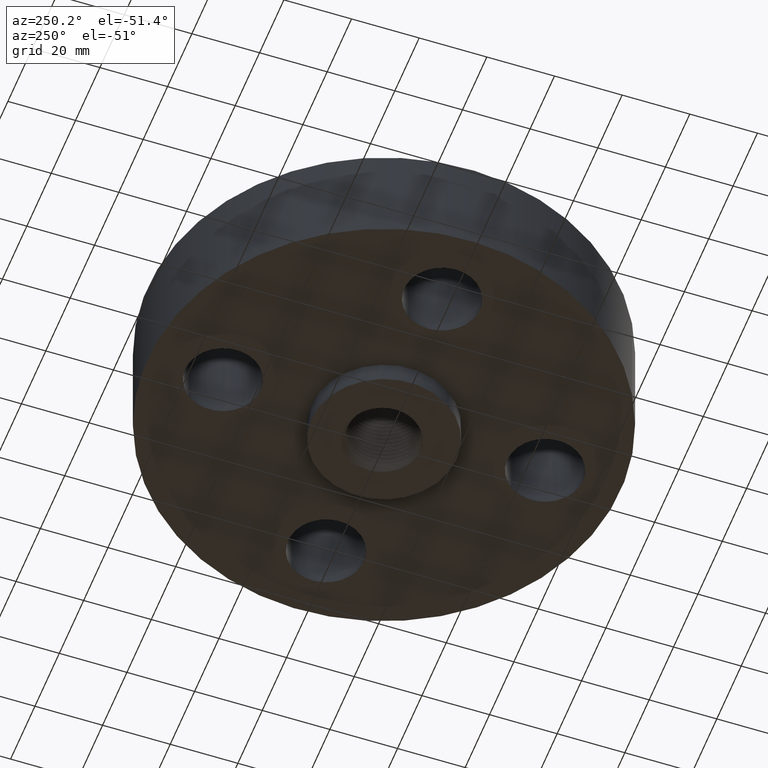
[diagram: clean part render]
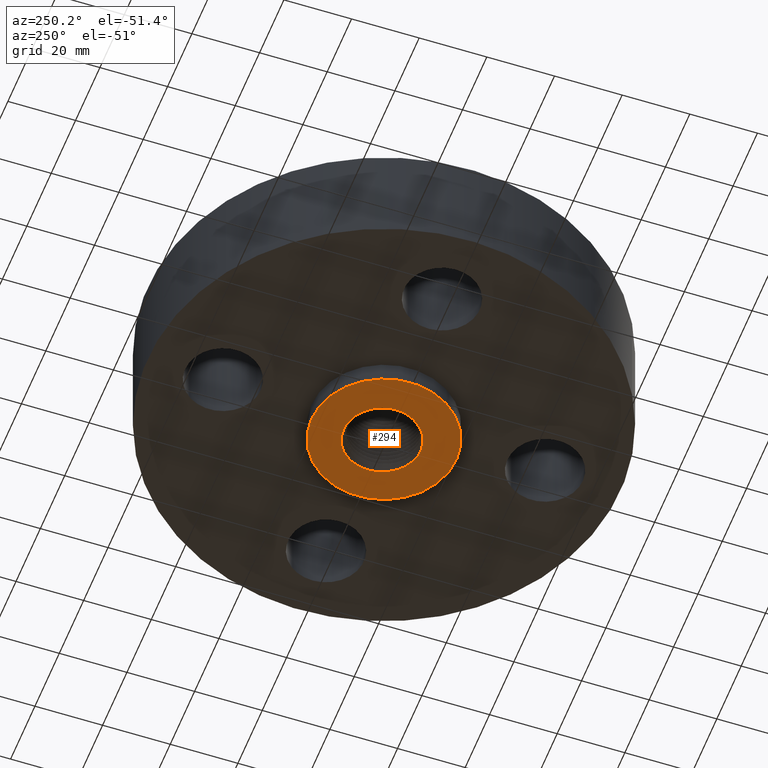
[diagram: same view with one face highlighted and labeled with its STEP entity id]
A machine part, auxiliary view. The second image highlights one B-rep face of the part: STEP entity #294.
In plain terms, the highlighted planar face has unit normal (0, 0, -1).
Its self-contained STEP definition (entity closure, byte-faithful):
#168=AXIS2_PLACEMENT_3D('Plane Axis2P3D',#165,#166,#167) ;
#172=AXIS2_PLACEMENT_3D('Circle Axis2P3D',#170,#171,$) ;
#181=AXIS2_PLACEMENT_3D('Circle Axis2P3D',#179,#180,$) ;
#282=AXIS2_PLACEMENT_3D('Circle Axis2P3D',#280,#281,$) ;
#165=CARTESIAN_POINT('Axis2P3D Location',(0.,0.,-0.250000000001)) ;
#170=CARTESIAN_POINT('Axis2P3D Location',(0.,0.,-0.250000000001)) ;
#174=CARTESIAN_POINT('Vertex',(0.405114580122,0.7415572648,-0.250000000001)) ;
#176=CARTESIAN_POINT('Vertex',(-0.405114580122,-0.7415572648,-0.250000000001)) ;
#179=CARTESIAN_POINT('Axis2P3D Location',(0.,0.,-0.250000000001)) ;
#189=CARTESIAN_POINT('Control Point',(-6.53711867609E-005,-0.434220736851,-0.250000000001)) ;
#190=CARTESIAN_POINT('Control Point',(-0.045888895126,-0.432388937458,-0.250000000001)) ;
#191=CARTESIAN_POINT('Control Point',(-0.0913489475798,-0.424507658599,-0.250000000001)) ;
#192=CARTESIAN_POINT('Control Point',(-0.135366753099,-0.410640990649,-0.250000000001)) ;
#193=CARTESIAN_POINT('Control Point',(-0.197742313463,-0.381366370656,-0.250000000001)) ;
#194=CARTESIAN_POINT('Control Point',(-0.252490503629,-0.340766001612,-0.250000000001)) ;
#195=CARTESIAN_POINT('Control Point',(-0.269828717847,-0.326003028399,-0.250000000001)) ;
#196=CARTESIAN_POINT('Control Point',(-0.286099234949,-0.310141856312,-0.250000000001)) ;
#197=CARTESIAN_POINT('Control Point',(-0.301213110676,-0.293285926354,-0.250000000001)) ;
#198=CARTESIAN_POINT('Vertex',(-6.53711867609E-005,-0.434220736851,-0.250000000001)) ;
#200=CARTESIAN_POINT('Vertex',(-0.301213289618,-0.293286212737,-0.250000054857)) ;
#204=CARTESIAN_POINT('Control Point',(0.212276347253,-0.388677834281,-0.250000000001)) ;
#205=CARTESIAN_POINT('Control Point',(0.172775053043,-0.408290804184,-0.250000000001)) ;
#206=CARTESIAN_POINT('Control Point',(0.130924728626,-0.422936109546,-0.250000000001)) ;
#207=CARTESIAN_POINT('Control Point',(0.0875344417337,-0.432223950328,-0.250000000001)) ;
#208=CARTESIAN_POINT('Control Point',(0.0435697838011,-0.435965055786,-0.250000000001)) ;
#209=CARTESIAN_POINT('Control Point',(-6.5371186761E-005,-0.434220736851,-0.250000000001)) ;
#210=CARTESIAN_POINT('Vertex',(0.212276347253,-0.388677834281,-0.250000000001)) ;
#214=CARTESIAN_POINT('Control Point',(0.313129577588,0.358690075799,-0.250000000001)) ;
#215=CARTESIAN_POINT('Control Point',(0.345769248585,0.328039286793,-0.250000000001)) ;
#216=CARTESIAN_POINT('Control Point',(0.374740638981,0.293608636533,-0.250000000001)) ;
#217=CARTESIAN_POINT('Control Point',(0.399452248007,0.255966052701,-0.250000000001)) ;
#218=CARTESIAN_POINT('Control Point',(0.431421410495,0.191765119803,-0.250000000001)) ;
#219=CARTESIAN_POINT('Control Point',(0.450602397653,0.123214638373,-0.250000000001)) ;
#220=CARTESIAN_POINT('Control Point',(0.455935872845,0.0970803492297,-0.250000000001)) ;
#221=CARTESIAN_POINT('Control Point',(0.465116092068,0.0267102460873,-0.250000000001)) ;
#222=CARTESIAN_POINT('Control Point',(0.460805330466,-0.044192226786,-0.250000000001)) ;
#223=CARTESIAN_POINT('Control Point',(0.452807680931,-0.0878707983053,-0.250000000001)) ;
#224=CARTESIAN_POINT('Control Point',(0.4265560584,-0.172255667361,-0.250000000001)) ;
#225=CARTESIAN_POINT('Control Point',(0.381223725128,-0.247666205016,-0.250000000001)) ;
#226=CARTESIAN_POINT('Control Point',(0.354144657071,-0.282365103189,-0.250000000001)) ;
#227=CARTESIAN_POINT('Control Point',(0.310197888563,-0.326399054135,-0.250000000001)) ;
#228=CARTESIAN_POINT('Control Point',(0.259825935983,-0.361946602428,-0.250000000001)) ;
#229=CARTESIAN_POINT('Control Point',(0.244413287284,-0.371681056901,-0.250000000001)) ;
#230=CARTESIAN_POINT('Control Point',(0.228543952238,-0.380600730719,-0.250000000001)) ;
#231=CARTESIAN_POINT('Control Point',(0.212276347253,-0.388677834281,-0.250000000001)) ;
#232=CARTESIAN_POINT('Vertex',(0.313129577588,0.358690075799,-0.250000000001)) ;
#236=CARTESIAN_POINT('Control Point',(0.313129577646,0.358690075799,-0.250000000001)) ;
#237=CARTESIAN_POINT('Control Point',(0.283728001747,0.382347080325,-0.250000000001)) ;
#238=CARTESIAN_POINT('Control Point',(0.252037725258,0.403043295537,-0.250000000001)) ;
#239=CARTESIAN_POINT('Control Point',(0.218447055836,0.420477347549,-0.250000000001)) ;
#240=CARTESIAN_POINT('Control Point',(0.155426546005,0.445557717871,-0.250000000001)) ;
#241=CARTESIAN_POINT('Control Point',(0.089281717292,0.458927099169,-0.250000000001)) ;
#242=CARTESIAN_POINT('Control Point',(0.0595403769343,0.462488019325,-0.250000000001)) ;
#243=CARTESIAN_POINT('Control Point',(0.0296871298369,0.463646000998,-0.250000000001)) ;
#244=CARTESIAN_POINT('Control Point',(-1.8509406782E-005,0.46241656434,-0.250000000001)) ;
#245=CARTESIAN_POINT('Vertex',(-1.8509406783E-005,0.46241656434,-0.250000000001)) ;
#249=CARTESIAN_POINT('Control Point',(-1.85094067829E-005,0.46241656434,-0.250000000001)) ;
#250=CARTESIAN_POINT('Control Point',(-0.0414849314258,0.460700380442,-0.250000000001)) ;
#251=CARTESIAN_POINT('Control Point',(-0.0826644001916,0.454332190189,-0.250000000001)) ;
#252=CARTESIAN_POINT('Control Point',(-0.122870214805,0.44334919881,-0.250000000001)) ;
#253=CARTESIAN_POINT('Control Point',(-0.165600774447,0.426279892152,-0.250000000001)) ;
#254=CARTESIAN_POINT('Control Point',(-0.205509618013,0.40421491769,-0.250000000001)) ;
#255=CARTESIAN_POINT('Control Point',(-0.20941613756,0.401991358824,-0.250000000001)) ;
#256=CARTESIAN_POINT('Control Point',(-0.21329263823,0.399720763072,-0.250000000001)) ;
#257=CARTESIAN_POINT('Control Point',(-0.217139360851,0.397403054396,-0.250000000001)) ;
#258=CARTESIAN_POINT('Vertex',(-0.217139360851,0.397403054396,-0.250000000001)) ;
#262=CARTESIAN_POINT('Control Point',(-0.217139360851,0.397403054396,-0.250000000001)) ;
#263=CARTESIAN_POINT('Control Point',(-0.254553124432,0.374860694973,-0.250000000001)) ;
#264=CARTESIAN_POINT('Control Point',(-0.289150638511,0.347861229504,-0.250000000001)) ;
#265=CARTESIAN_POINT('Control Point',(-0.320205805503,0.316863215083,-0.250000000001)) ;
#266=CARTESIAN_POINT('Control Point',(-0.37404249981,0.248120467831,-0.250000000001)) ;
#267=CARTESIAN_POINT('Control Point',(-0.409592643832,0.16889621612,-0.250000000001)) ;
#268=CARTESIAN_POINT('Control Point',(-0.422377534033,0.127384438212,-0.250000000001)) ;
#269=CARTESIAN_POINT('Control Point',(-0.43595457038,0.0508097195421,-0.250000000001)) ;
#270=CARTESIAN_POINT('Control Point',(-0.432459581075,-0.026302012566,-0.250000000001)) ;
#271=CARTESIAN_POINT('Control Point',(-0.42751871944,-0.0602422246644,-0.250000000001)) ;
#272=CARTESIAN_POINT('Control Point',(-0.412465380643,-0.120700156778,-0.250000000001)) ;
#273=CARTESIAN_POINT('Control Point',(-0.386940279313,-0.177127947377,-0.250000000001)) ;
#274=CARTESIAN_POINT('Control Point',(-0.373366167475,-0.201557710152,-0.250000000001)) ;
#275=CARTESIAN_POINT('Control Point',(-0.357878406456,-0.224710699644,-0.250000000001)) ;
#276=CARTESIAN_POINT('Control Point',(-0.340639432558,-0.246395898673,-0.250000000001)) ;
#277=CARTESIAN_POINT('Vertex',(-0.340639503985,-0.246395980549,-0.249999960402)) ;
#280=CARTESIAN_POINT('Axis2P3D Location',(-6.99353086378E-017,0.,-0.250000000001)) ;
#166=DIRECTION('Axis2P3D Direction',(0.,0.,-0.0393700787402)) ;
#167=DIRECTION('Axis2P3D XDirection',(0.0393700787402,0.,0.)) ;
#171=DIRECTION('Axis2P3D Direction',(0.,0.,-0.0393700787402)) ;
#180=DIRECTION('Axis2P3D Direction',(0.,0.,-0.0393700787402)) ;
#281=DIRECTION('Axis2P3D Direction',(0.,0.,-0.0393700787402)) ;
#185=ORIENTED_EDGE('',*,*,#178,.T.) ;
#186=ORIENTED_EDGE('',*,*,#183,.T.) ;
#286=ORIENTED_EDGE('',*,*,#202,.F.) ;
#287=ORIENTED_EDGE('',*,*,#212,.F.) ;
#288=ORIENTED_EDGE('',*,*,#234,.F.) ;
#289=ORIENTED_EDGE('',*,*,#247,.T.) ;
#290=ORIENTED_EDGE('',*,*,#260,.T.) ;
#291=ORIENTED_EDGE('',*,*,#279,.T.) ;
#292=ORIENTED_EDGE('',*,*,#284,.F.) ;
#293=FACE_BOUND('',#285,.T.) ;
#294=ADVANCED_FACE('PartBody',(#187,#293),#169,.T.) ;
#188=B_SPLINE_CURVE_WITH_KNOTS('',5,(#189,#190,#191,#192,#193,#194,#195,#196,#197),.UNSPECIFIED.,.F.,.U.,(6,3,6),(0.,8.36770129661,12.5700443344),.UNSPECIFIED.) ;
#203=B_SPLINE_CURVE_WITH_KNOTS('',5,(#204,#205,#206,#207,#208,#209),.UNSPECIFIED.,.F.,.U.,(6,6),(0.,7.96808956384),.UNSPECIFIED.) ;
#213=B_SPLINE_CURVE_WITH_KNOTS('',5,(#214,#215,#216,#217,#218,#219,#220,#221,#222,#223,#224,#225,#226,#227,#228,#229,#230,#231),.UNSPECIFIED.,.F.,.U.,(6,3,3,3,3,6),(0.,7.81917380367,12.507672472,20.3199067005,28.1312253768,31.4126807286),.UNSPECIFIED.) ;
#235=B_SPLINE_CURVE_WITH_KNOTS('',5,(#236,#237,#238,#239,#240,#241,#242,#243,#244),.UNSPECIFIED.,.F.,.U.,(6,3,6),(0.,6.59037298163,11.8539380468),.UNSPECIFIED.) ;
#248=B_SPLINE_CURVE_WITH_KNOTS('',5,(#249,#250,#251,#252,#253,#254,#255,#256,#257),.UNSPECIFIED.,.F.,.U.,(6,3,6),(0.,7.3474672108,8.15088159709),.UNSPECIFIED.) ;
#261=B_SPLINE_CURVE_WITH_KNOTS('',5,(#262,#263,#264,#265,#266,#267,#268,#269,#270,#271,#272,#273,#274,#275,#276),.UNSPECIFIED.,.F.,.U.,(6,3,3,3,6),(0.,7.81412095775,15.6348847987,21.8922214044,27.0468645302),.UNSPECIFIED.) ;
#173=CIRCLE('generated circle',#172,0.845000000003) ;
#182=CIRCLE('generated circle',#181,0.845000000003) ;
#283=CIRCLE('generated circle',#282,0.420412000144) ;
#178=EDGE_CURVE('',#175,#177,#173,.T.) ;
#183=EDGE_CURVE('',#177,#175,#182,.T.) ;
#202=EDGE_CURVE('',#199,#201,#188,.T.) ;
#212=EDGE_CURVE('',#211,#199,#203,.T.) ;
#234=EDGE_CURVE('',#233,#211,#213,.T.) ;
#247=EDGE_CURVE('',#233,#246,#235,.T.) ;
#260=EDGE_CURVE('',#246,#259,#248,.T.) ;
#279=EDGE_CURVE('',#259,#278,#261,.T.) ;
#284=EDGE_CURVE('',#201,#278,#283,.T.) ;
#184=EDGE_LOOP('',(#185,#186)) ;
#285=EDGE_LOOP('',(#286,#287,#288,#289,#290,#291,#292)) ;
#187=FACE_OUTER_BOUND('',#184,.T.) ;
#169=PLANE('',#168) ;
#175=VERTEX_POINT('',#174) ;
#177=VERTEX_POINT('',#176) ;
#199=VERTEX_POINT('',#198) ;
#201=VERTEX_POINT('',#200) ;
#211=VERTEX_POINT('',#210) ;
#233=VERTEX_POINT('',#232) ;
#246=VERTEX_POINT('',#245) ;
#259=VERTEX_POINT('',#258) ;
#278=VERTEX_POINT('',#277) ;